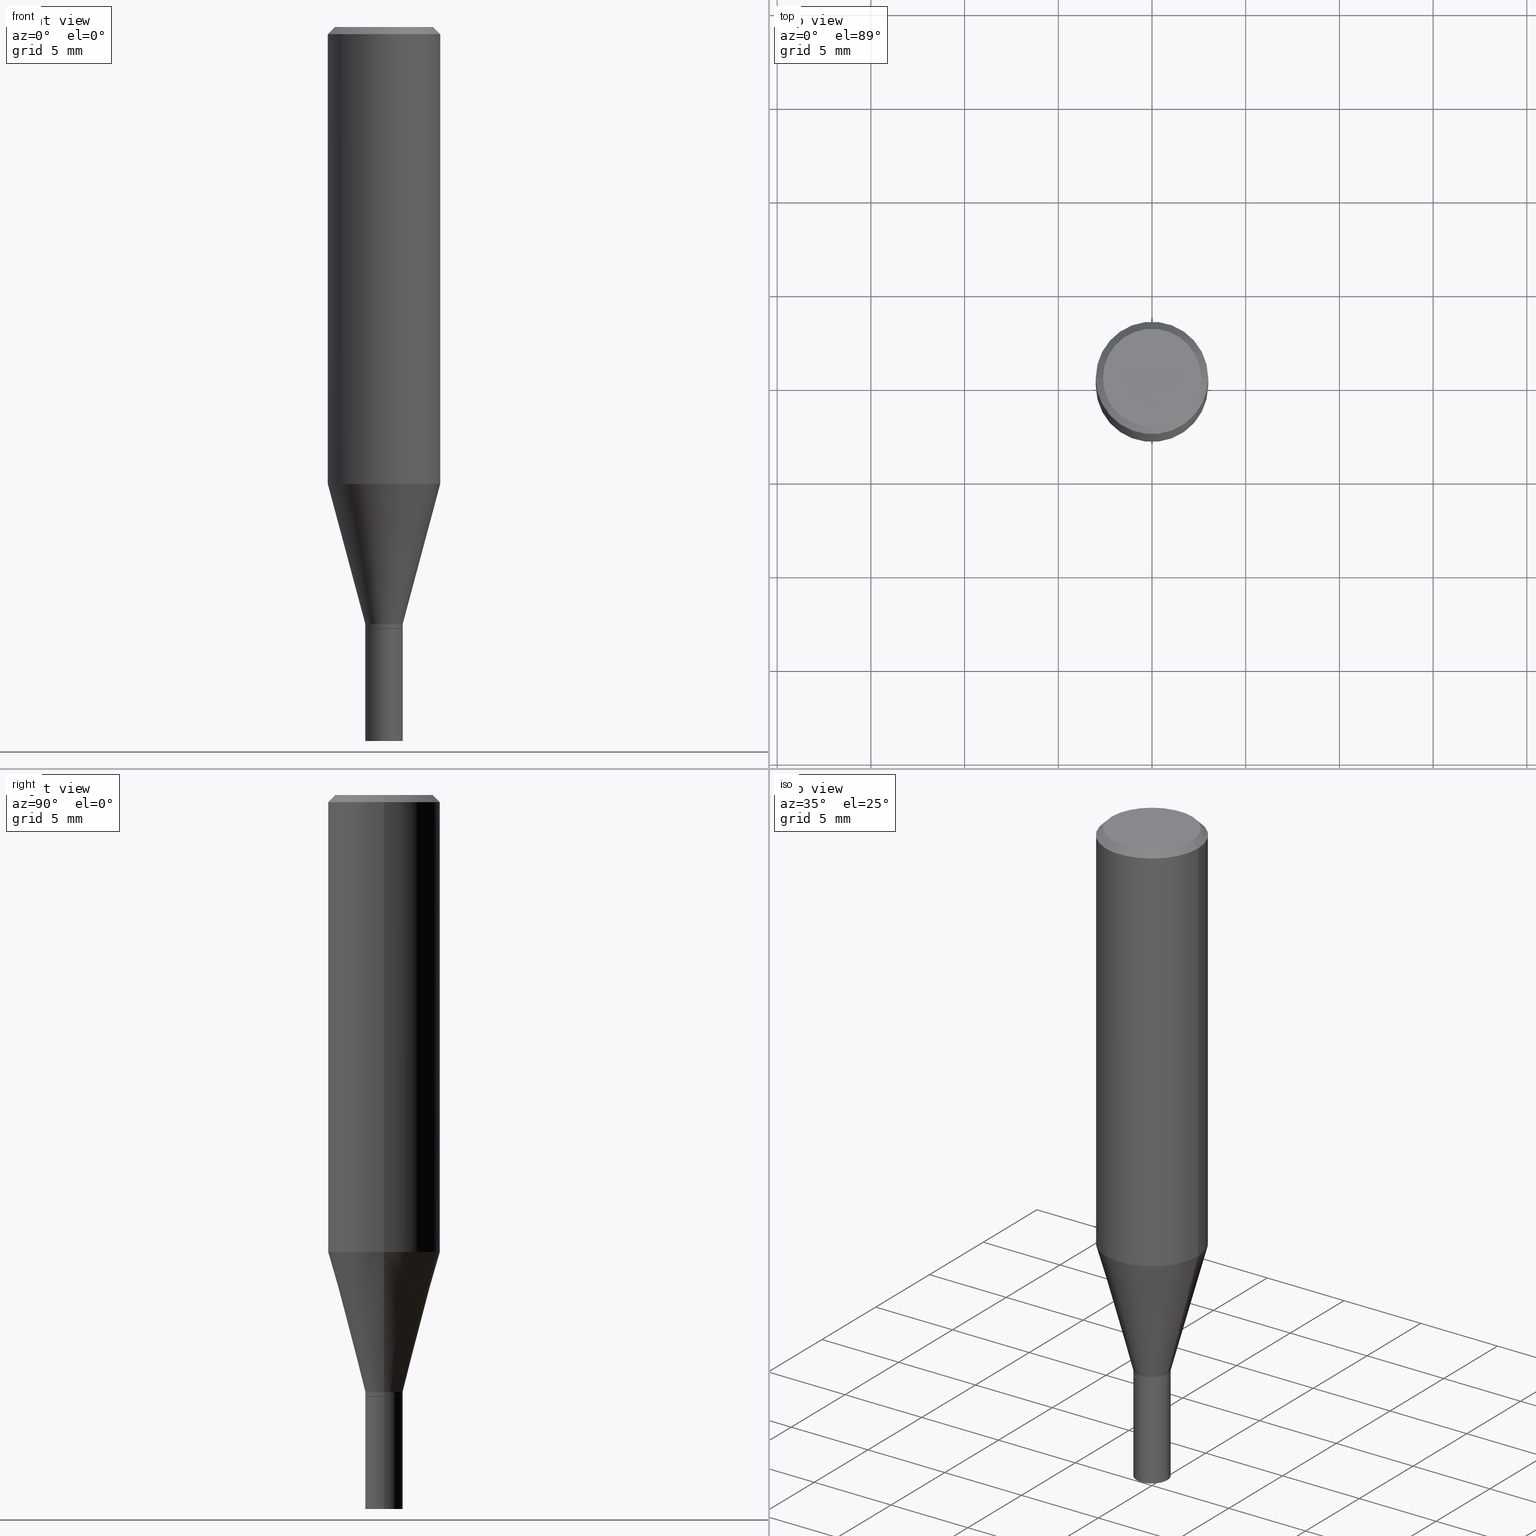
[diagram: canonical four-view strip — front | top / right | iso, engineering-drawing reading convention]
A machine part, canonical four-view strip (front | top / right | iso — engineering-drawing reading convention). The complete STEP part file that produces these views, byte-faithful:
ISO-10303-21;
HEADER;
FILE_DESCRIPTION (( 'STEP AP203' ),
    '1' );
FILE_NAME ('05352.STEP',
    '2024-03-14T18:10:22',
    ( '' ),
    ( '' ),
    'SwSTEP 2.0',
    'SolidWorks 2023',
    '' );
FILE_SCHEMA (( 'CONFIG_CONTROL_DESIGN' ));
ENDSEC;

DATA;
#1 = APPLICATION_PROTOCOL_DEFINITION ( 'international standard', 'config_control_design', 1994, #447 ) ;
#2 = ADVANCED_FACE ( 'NONE', ( #351 ), #379, .T. ) ;
#3 = CARTESIAN_POINT ( 'NONE',  ( 0.03934999999999992670, -4.685567956727500172E-15, -1.263300000000000090 ) ) ;
#4 = APPROVAL_STATUS ( 'not_yet_approved' ) ;
#5 = CARTESIAN_POINT ( 'NONE',  ( -0.1180999999999999966, 7.723156721521009862E-16, -0.01499999999999999944 ) ) ;
#6 = CIRCLE ( 'NONE', #183, 0.1180999999999999966 ) ;
#7 = CC_DESIGN_APPROVAL ( #44, ( #290 ) ) ;
#8 = PERSON_AND_ORGANIZATION_ROLE ( 'design_supplier' ) ;
#9 = DIRECTION ( 'NONE',  ( -2.445468806185136597E-29, 3.491481338843145583E-15, 1.000000000000000000 ) ) ;
#10 = EDGE_CURVE ( 'NONE', #160, #54, #426, .T. ) ;
#11 = ORIENTED_EDGE ( 'NONE', *, *, #295, .F. ) ;
#12 = PERSON_AND_ORGANIZATION ( #457, #416 ) ;
#13 = CC_DESIGN_PERSON_AND_ORGANIZATION_ASSIGNMENT ( #388, #431, ( #304 ) ) ;
#14 = DIRECTION ( 'NONE',  ( 1.000000000000000000, -6.982962677686265922E-15, 4.824495916043694704E-29 ) ) ;
#15 = CYLINDRICAL_SURFACE ( 'NONE', #76, 0.1180999999999999966 ) ;
#16 = CIRCLE ( 'NONE', #329, 0.03935000000000000303 ) ;
#17 = LINE ( 'NONE', #154, #358 ) ;
#18 = ORIENTED_EDGE ( 'NONE', *, *, #103, .F. ) ;
#19 = CARTESIAN_POINT ( 'NONE',  ( 3.668203209277705088E-31, -5.237222008264718399E-17, -0.01499999999999999944 ) ) ;
#20 = EDGE_CURVE ( 'NONE', #309, #268, #135, .T. ) ;
#21 = CARTESIAN_POINT ( 'NONE',  ( -0.03885000000000000259, -4.133839036013058638E-15, -1.263800000000000034 ) ) ;
#22 = CARTESIAN_POINT ( 'NONE',  ( 0.03934999999999991283, -2.747795813669539801E-16, 1.918775561275696519E-30 ) ) ;
#23 = DIRECTION ( 'NONE',  ( 1.000000000000000000, -6.982962677686269077E-15, 0.000000000000000000 ) ) ;
#24 = AXIS2_PLACEMENT_3D ( 'NONE', #110, #9, #101 ) ;
#25 = EDGE_CURVE ( 'NONE', #437, #236, #387, .T. ) ;
#26 = VECTOR ( 'NONE', #331, 39.37007874015748143 ) ;
#27 = DIRECTION ( 'NONE',  ( -1.000000000000000000, 6.982962677686265922E-15, -4.876176775795935793E-29 ) ) ;
#28 = EDGE_CURVE ( 'NONE', #131, #389, #71, .T. ) ;
#29 = FACE_OUTER_BOUND ( 'NONE', #185, .T. ) ;
#30 = DIRECTION ( 'NONE',  ( -2.445468806185136597E-29, 3.491481338843145583E-15, 1.000000000000000000 ) ) ;
#31 = CIRCLE ( 'NONE', #99, 0.03934999999999991283 ) ;
#32 = LINE ( 'NONE', #206, #40 ) ;
#33 = DIRECTION ( 'NONE',  ( -2.445468806185136597E-29, 3.491481338843145583E-15, 1.000000000000000000 ) ) ;
#34 = FACE_OUTER_BOUND ( 'NONE', #439, .T. ) ;
#35 = CARTESIAN_POINT ( 'NONE',  ( 3.090583477256776013E-29, -4.412534116029967548E-15, -1.263800000000000034 ) ) ;
#36 = DATE_AND_TIME ( #208, #458 ) ;
#37 = CARTESIAN_POINT ( 'NONE',  ( 3.576687321579069994E-29, -5.368277968210015545E-15, -1.500000000000000222 ) ) ;
#38 = CARTESIAN_POINT ( 'NONE',  ( 3.090583477256776013E-29, -4.412534116029967548E-15, -1.263800000000000034 ) ) ;
#39 = LINE ( 'NONE', #349, #429 ) ;
#40 = VECTOR ( 'NONE', #394, 39.37007874015748143 ) ;
#41 = CARTESIAN_POINT ( 'NONE',  ( 0.03935000000000000303, -4.687313697396922464E-15, -1.263800000000000034 ) ) ;
#42 = FACE_OUTER_BOUND ( 'NONE', #169, .T. ) ;
#43 = APPROVAL_DATE_TIME ( #219, #98 ) ;
#44 = APPROVAL ( #201, 'UNSPECIFIED' ) ;
#45 = CARTESIAN_POINT ( 'NONE',  ( -0.03935000000000000303, -4.545279495625743861E-15, -1.500000000000000222 ) ) ;
#46 = ORIENTED_EDGE ( 'NONE', *, *, #146, .T. ) ;
#47 = EDGE_CURVE ( 'NONE', #344, #59, #456, .T. ) ;
#48 = FACE_OUTER_BOUND ( 'NONE', #407, .T. ) ;
#49 = ORIENTED_EDGE ( 'NONE', *, *, #172, .F. ) ;
#50 = LINE ( 'NONE', #231, #26 ) ;
#51 = CLOSED_SHELL ( 'NONE', ( #210, #2, #327, #166, #392, #94, #91, #161, #242, #261, #245, #126 ) ) ;
#52 = CARTESIAN_POINT ( 'NONE',  ( -0.03934999999999991283, 2.795985665215988037E-16, -1.935600958015301438E-30 ) ) ;
#53 = PLANE ( 'NONE',  #413 ) ;
#54 = VERTEX_POINT ( 'NONE', #322 ) ;
#55 = FACE_OUTER_BOUND ( 'NONE', #366, .T. ) ;
#56 = EDGE_LOOP ( 'NONE', ( #151, #444, #253, #79 ) ) ;
#57 = VECTOR ( 'NONE', #398, 39.37007874015748143 ) ;
#58 = DIRECTION ( 'NONE',  ( 1.000000000000000000, -6.982962677686266711E-15, 0.000000000000000000 ) ) ;
#59 = VERTEX_POINT ( 'NONE', #21 ) ;
#60 = CARTESIAN_POINT ( 'NONE',  ( 0.000000000000000000, 0.000000000000000000, 0.000000000000000000 ) ) ;
#61 = CARTESIAN_POINT ( 'NONE',  ( 0.000000000000000000, 0.000000000000000000, 0.000000000000000000 ) ) ;
#62 = AXIS2_PLACEMENT_3D ( 'NONE', #194, #269, #302 ) ;
#63 = DIRECTION ( 'NONE',  ( -2.445468806185136597E-29, 3.491481338843145583E-15, 1.000000000000000000 ) ) ;
#64 = APPROVAL_PERSON_ORGANIZATION ( #386, #44, #390 ) ;
#65 = FACE_OUTER_BOUND ( 'NONE', #370, .T. ) ;
#66 =( NAMED_UNIT ( * ) SI_UNIT ( $, .STERADIAN. ) SOLID_ANGLE_UNIT ( ) );
#67 = DIRECTION ( 'NONE',  ( -1.000000000000000000, 6.982962677686266711E-15, 0.000000000000000000 ) ) ;
#68 = CARTESIAN_POINT ( 'NONE',  ( 3.066128789194924468E-29, -4.377619302641535898E-15, -1.253800000000000248 ) ) ;
#69 = AXIS2_PLACEMENT_3D ( 'NONE', #150, #254, #328 ) ;
#70 = DIRECTION ( 'NONE',  ( -2.445468806185136877E-29, 3.491481338843145188E-15, 1.000000000000000000 ) ) ;
#71 = LINE ( 'NONE', #441, #283 ) ;
#72 = CALENDAR_DATE ( 2024, 14, 3 ) ;
#73 = DIRECTION ( 'NONE',  ( -2.445468806185136877E-29, 3.491481338843145188E-15, 1.000000000000000000 ) ) ;
#74 = EDGE_CURVE ( 'NONE', #137, #414, #129, .T. ) ;
#75 = PERSON_AND_ORGANIZATION ( #457, #416 ) ;
#76 = AXIS2_PLACEMENT_3D ( 'NONE', #294, #446, #463 ) ;
#77 = CC_DESIGN_DATE_AND_TIME_ASSIGNMENT ( #143, #109, ( #78 ) ) ;
#78 = SECURITY_CLASSIFICATION ( '', '', #442 ) ;
#79 = ORIENTED_EDGE ( 'NONE', *, *, #396, .F. ) ;
#80 = COORDINATED_UNIVERSAL_TIME_OFFSET ( 5, 0, .BEHIND. ) ;
#81 = DIRECTION ( 'NONE',  ( 1.000000000000000000, -6.982962677686260400E-15, 0.000000000000000000 ) ) ;
#82 = DIRECTION ( 'NONE',  ( 1.000000000000000000, -6.982962677686256455E-15, 0.000000000000000000 ) ) ;
#83 = ORIENTED_EDGE ( 'NONE', *, *, #363, .F. ) ;
#84 = EDGE_CURVE ( 'NONE', #268, #309, #221, .T. ) ;
#85 = DIRECTION ( 'NONE',  ( -0.2588190451025213501, 5.211531920934551042E-15, 0.9659258262890682012 ) ) ;
#86 = LINE ( 'NONE', #52, #424 ) ;
#87 = AXIS2_PLACEMENT_3D ( 'NONE', #243, #187, #67 ) ;
#88 = LINE ( 'NONE', #198, #399 ) ;
#89 = CARTESIAN_POINT ( 'NONE',  ( 3.066128789194924468E-29, -4.377619302641535898E-15, -1.253800000000000248 ) ) ;
#90 = PLANE ( 'NONE',  #452 ) ;
#91 = ADVANCED_FACE ( 'NONE', ( #42 ), #400, .T. ) ;
#92 = DIRECTION ( 'NONE',  ( -2.445468806185136597E-29, 3.491481338843145583E-15, 1.000000000000000000 ) ) ;
#93 = AXIS2_PLACEMENT_3D ( 'NONE', #163, #191, #262 ) ;
#94 = ADVANCED_FACE ( 'NONE', ( #354 ), #371, .T. ) ;
#95 = ORIENTED_EDGE ( 'NONE', *, *, #345, .F. ) ;
#96 = CONICAL_SURFACE ( 'NONE', #153, 0.1180999999999999966, 0.7853981633974160825 ) ;
#97 = PERSON_AND_ORGANIZATION_ROLE ( 'creator' ) ;
#98 = APPROVAL ( #4, 'UNSPECIFIED' ) ;
#99 = AXIS2_PLACEMENT_3D ( 'NONE', #430, #278, #81 ) ;
#100 = DIRECTION ( 'NONE',  ( -2.445468806185136597E-29, 3.491481338843145583E-15, 1.000000000000000000 ) ) ;
#101 = DIRECTION ( 'NONE',  ( 1.000000000000000000, -6.982962677686258033E-15, 0.000000000000000000 ) ) ;
#102 = APPROVAL_ROLE ( '' ) ;
#103 = EDGE_CURVE ( 'NONE', #414, #137, #31, .T. ) ;
#104 = DIRECTION ( 'NONE',  ( 1.000000000000000000, -6.982962677686265922E-15, 4.876176775795935793E-29 ) ) ;
#105 = CARTESIAN_POINT ( 'NONE',  ( -0.1180999999999999966, 8.391509709326782957E-16, -5.809262341591043784E-30 ) ) ;
#106 = DIRECTION ( 'NONE',  ( 1.000000000000000000, -6.982962677686256455E-15, 0.000000000000000000 ) ) ;
#107 = CIRCLE ( 'NONE', #62, 0.03935000000000000303 ) ;
#108 = ORIENTED_EDGE ( 'NONE', *, *, #179, .F. ) ;
#109 = DATE_TIME_ROLE ( 'classification_date' ) ;
#110 = CARTESIAN_POINT ( 'NONE',  ( 3.089360742853683212E-29, -4.410788375360546833E-15, -1.263300000000000090 ) ) ;
#111 = COORDINATED_UNIVERSAL_TIME_OFFSET ( 5, 0, .BEHIND. ) ;
#112 = CC_DESIGN_PERSON_AND_ORGANIZATION_ASSIGNMENT ( #167, #97, ( #290 ) ) ;
#113 = AXIS2_PLACEMENT_3D ( 'NONE', #170, #314, #139 ) ;
#114 = CARTESIAN_POINT ( 'NONE',  ( 0.000000000000000000, 0.000000000000000000, 0.000000000000000000 ) ) ;
#115 = ADVANCED_FACE ( 'NONE', ( #359 ), #213, .T. ) ;
#116 = ORIENTED_EDGE ( 'NONE', *, *, #345, .T. ) ;
#117 = APPROVAL_PERSON_ORGANIZATION ( #75, #98, #226 ) ;
#118 = DIRECTION ( 'NONE',  ( 1.000000000000000000, -6.982962677686269077E-15, 0.000000000000000000 ) ) ;
#119 = VERTEX_POINT ( 'NONE', #227 ) ;
#120 = FACE_OUTER_BOUND ( 'NONE', #343, .T. ) ;
#121 = CARTESIAN_POINT ( 'NONE',  ( 3.668203209277705088E-31, -5.237222008264718399E-17, -0.01499999999999999944 ) ) ;
#122 = VECTOR ( 'NONE', #70, 39.37007874015748143 ) ;
#123 = EDGE_CURVE ( 'NONE', #59, #54, #281, .T. ) ;
#124 = DIRECTION ( 'NONE',  ( 2.438088387897960049E-29, -3.491481338843145188E-15, -1.000000000000000000 ) ) ;
#125 = DIRECTION ( 'NONE',  ( -2.445468806185136597E-29, 3.491481338843145583E-15, 1.000000000000000000 ) ) ;
#126 = ADVANCED_FACE ( 'NONE', ( #34 ), #259, .T. ) ;
#127 = ORIENTED_EDGE ( 'NONE', *, *, #123, .T. ) ;
#128 = CARTESIAN_POINT ( 'NONE',  ( 0.03885000000000000259, -4.683822216058078668E-15, -1.263800000000000034 ) ) ;
#129 = CIRCLE ( 'NONE', #158, 0.03934999999999991283 ) ;
#130 = DIRECTION ( 'NONE',  ( 0.2588190451025213501, 1.565188264969621968E-15, 0.9659258262890682012 ) ) ;
#131 = VERTEX_POINT ( 'NONE', #45 ) ;
#132 = EDGE_CURVE ( 'NONE', #309, #373, #174, .T. ) ;
#133 = COORDINATED_UNIVERSAL_TIME_OFFSET ( 5, 0, .BEHIND. ) ;
#134 = CARTESIAN_POINT ( 'NONE',  ( 0.1180999999999999966, -8.770601123173952432E-16, -0.01499999999999999944 ) ) ;
#135 = CIRCLE ( 'NONE', #316, 0.1180999999999999966 ) ;
#136 = DIRECTION ( 'NONE',  ( 1.000000000000000000, -6.982962677686266711E-15, 4.876176775795936353E-29 ) ) ;
#137 = VERTEX_POINT ( 'NONE', #393 ) ;
#138 = CARTESIAN_POINT ( 'NONE',  ( -0.03885000000000000259, -4.136488263187169051E-15, -1.263800000000000034 ) ) ;
#139 = DIRECTION ( 'NONE',  ( 1.000000000000000000, -6.982962677686269077E-15, 0.000000000000000000 ) ) ;
#140 = VERTEX_POINT ( 'NONE', #41 ) ;
#141 = CARTESIAN_POINT ( 'NONE',  ( 3.090583477256776013E-29, -4.412534116029967548E-15, -1.263800000000000034 ) ) ;
#142 = AXIS2_PLACEMENT_3D ( 'NONE', #37, #317, #104 ) ;
#143 = DATE_AND_TIME ( #72, #223 ) ;
#144 = DIRECTION ( 'NONE',  ( -2.445468806185136597E-29, 3.491481338843145583E-15, 1.000000000000000000 ) ) ;
#145 = ORIENTED_EDGE ( 'NONE', *, *, #427, .F. ) ;
#146 = EDGE_CURVE ( 'NONE', #59, #344, #165, .T. ) ;
#147 = PERSON_AND_ORGANIZATION_ROLE ( 'classification_officer' ) ;
#148 = ORIENTED_EDGE ( 'NONE', *, *, #295, .T. ) ;
#149 = CONICAL_SURFACE ( 'NONE', #214, 0.03885000000000000259, 0.7853981633974739252 ) ;
#150 = CARTESIAN_POINT ( 'NONE',  ( 3.090583477256776013E-29, -4.412534116029967548E-15, -1.263800000000000034 ) ) ;
#151 = ORIENTED_EDGE ( 'NONE', *, *, #103, .T. ) ;
#152 = ORIENTED_EDGE ( 'NONE', *, *, #171, .F. ) ;
#153 = AXIS2_PLACEMENT_3D ( 'NONE', #380, #409, #192 ) ;
#154 = CARTESIAN_POINT ( 'NONE',  ( 0.1180999999999999966, -8.625970336194650129E-16, -0.01499999999999999944 ) ) ;
#155 = ORIENTED_EDGE ( 'NONE', *, *, #84, .T. ) ;
#156 = DIRECTION ( 'NONE',  ( -2.445468806185136877E-29, 3.491481338843145188E-15, 1.000000000000000000 ) ) ;
#157 = DIRECTION ( 'NONE',  ( -1.000000000000000000, 6.982962677686265922E-15, -4.876176775795935793E-29 ) ) ;
#158 = AXIS2_PLACEMENT_3D ( 'NONE', #89, #372, #225 ) ;
#159 = LOCAL_TIME ( 14, 10, 22.00000000000000000, #80 ) ;
#160 = VERTEX_POINT ( 'NONE', #3 ) ;
#161 = ADVANCED_FACE ( 'NONE', ( #48 ), #435, .T. ) ;
#162 = LINE ( 'NONE', #22, #397 ) ;
#163 = CARTESIAN_POINT ( 'NONE',  ( -2.356111900284270779E-44, 3.363903359250623461E-30, 9.634602143871708828E-16 ) ) ;
#164 = DIMENSIONAL_EXPONENTS ( 1.000000000000000000, 0.000000000000000000, 0.000000000000000000, 0.000000000000000000, 0.000000000000000000, 0.000000000000000000, 0.000000000000000000 ) ;
#165 = CIRCLE ( 'NONE', #69, 0.03885000000000000259 ) ;
#166 = ADVANCED_FACE ( 'NONE', ( #436 ), #15, .T. ) ;
#167 = PERSON_AND_ORGANIZATION ( #457, #416 ) ;
#168 = CARTESIAN_POINT ( 'NONE',  ( 0.03934999999999991283, -4.652398884008490026E-15, -1.253800000000000248 ) ) ;
#169 = EDGE_LOOP ( 'NONE', ( #224, #285, #326, #95 ) ) ;
#170 = CARTESIAN_POINT ( 'NONE',  ( 3.090583477256776013E-29, -4.412534116029967548E-15, -1.263800000000000034 ) ) ;
#171 = EDGE_CURVE ( 'NONE', #236, #373, #209, .T. ) ;
#172 = EDGE_CURVE ( 'NONE', #389, #140, #339, .T. ) ;
#173 = CALENDAR_DATE ( 2024, 14, 3 ) ;
#174 = LINE ( 'NONE', #105, #252 ) ;
#175 = ADVANCED_FACE ( 'NONE', ( #65 ), #207, .F. ) ;
#176 = LENGTH_MEASURE_WITH_UNIT ( LENGTH_MEASURE( 0.02539999999999999897 ), #239 );
#177 = PRODUCT_DEFINITION_FORMATION_WITH_SPECIFIED_SOURCE ( 'ANY', '', #304, .NOT_KNOWN. ) ;
#178 = DIRECTION ( 'NONE',  ( -2.445468806185136597E-29, 3.491481338843145583E-15, 1.000000000000000000 ) ) ;
#179 = EDGE_CURVE ( 'NONE', #268, #204, #353, .T. ) ;
#180 = ORIENTED_EDGE ( 'NONE', *, *, #376, .T. ) ;
#181 = DIRECTION ( 'NONE',  ( -2.445468806185136597E-29, 3.491481338843145583E-15, 1.000000000000000000 ) ) ;
#182 = CC_DESIGN_PERSON_AND_ORGANIZATION_ASSIGNMENT ( #403, #286, ( #177 ) ) ;
#183 = AXIS2_PLACEMENT_3D ( 'NONE', #19, #92, #374 ) ;
#184 = APPLICATION_CONTEXT ( 'configuration controlled 3d designs of mechanical parts and assemblies' ) ;
#185 = EDGE_LOOP ( 'NONE', ( #448, #408 ) ) ;
#186 = MANIFOLD_SOLID_BREP ( 'Body-Move/Copy2[1]', #434 ) ;
#187 = DIRECTION ( 'NONE',  ( 2.445468806185136597E-29, -3.491481338843145583E-15, -1.000000000000000000 ) ) ;
#188 = ORIENTED_EDGE ( 'NONE', *, *, #256, .T. ) ;
#189 = AXIS2_PLACEMENT_3D ( 'NONE', #340, #411, #232 ) ;
#190 = DIRECTION ( 'NONE',  ( -2.445468806185136877E-29, 3.491481338843145188E-15, 1.000000000000000000 ) ) ;
#191 = DIRECTION ( 'NONE',  ( -2.445468806185136597E-29, 3.491481338843145583E-15, 1.000000000000000000 ) ) ;
#192 = DIRECTION ( 'NONE',  ( -1.000000000000000000, 6.982962677686266711E-15, 0.000000000000000000 ) ) ;
#193 = EDGE_CURVE ( 'NONE', #140, #389, #323, .T. ) ;
#194 = CARTESIAN_POINT ( 'NONE',  ( 3.668203209277704895E-29, -5.237222008264718177E-15, -1.500000000000000222 ) ) ;
#195 = AXIS2_PLACEMENT_3D ( 'NONE', #114, #100, #433 ) ;
#196 = LOCAL_TIME ( 14, 10, 22.00000000000000000, #212 ) ;
#197 = ORIENTED_EDGE ( 'NONE', *, *, #171, .T. ) ;
#198 = CARTESIAN_POINT ( 'NONE',  ( -0.03934999999999991283, -4.098020736119937292E-15, -1.253800000000000248 ) ) ;
#199 = EDGE_LOOP ( 'NONE', ( #341, #272, #18, #215 ) ) ;
#200 = ORIENTED_EDGE ( 'NONE', *, *, #74, .T. ) ;
#201 = APPROVAL_STATUS ( 'not_yet_approved' ) ;
#202 = CARTESIAN_POINT ( 'NONE',  ( -2.356111900284270779E-44, 3.363903359250623461E-30, 9.634602143871708828E-16 ) ) ;
#203 = CIRCLE ( 'NONE', #189, 0.03934999999999992670 ) ;
#204 = VERTEX_POINT ( 'NONE', #134 ) ;
#205 = CC_DESIGN_SECURITY_CLASSIFICATION ( #78, ( #177 ) ) ;
#206 = CARTESIAN_POINT ( 'NONE',  ( 0.03885000000000000259, -4.683822216058078668E-15, -1.263800000000000034 ) ) ;
#207 = PLANE ( 'NONE',  #142 ) ;
#208 = CALENDAR_DATE ( 2024, 14, 3 ) ;
#209 = LINE ( 'NONE', #5, #57 ) ;
#210 = ADVANCED_FACE ( 'NONE', ( #466 ), #280, .T. ) ;
#211 = CARTESIAN_POINT ( 'NONE',  ( 2.347407949845566514E-29, -3.351476424810041143E-15, -0.9599009989039514190 ) ) ;
#212 = COORDINATED_UNIVERSAL_TIME_OFFSET ( 5, 0, .BEHIND. ) ;
#213 = CYLINDRICAL_SURFACE ( 'NONE', #195, 0.03935000000000000303 ) ;
#214 = AXIS2_PLACEMENT_3D ( 'NONE', #454, #419, #233 ) ;
#215 = ORIENTED_EDGE ( 'NONE', *, *, #256, .F. ) ;
#216 = EDGE_CURVE ( 'NONE', #236, #437, #293, .T. ) ;
#217 = CONICAL_SURFACE ( 'NONE', #266, 0.03934999999999991283, 0.2617993877991500740 ) ;
#218 = DIRECTION ( 'NONE',  ( 1.000000000000000000, -6.982962677686266711E-15, 4.876176775795936353E-29 ) ) ;
#219 = DATE_AND_TIME ( #247, #159 ) ;
#220 = APPROVAL_DATE_TIME ( #273, #299 ) ;
#221 = CIRCLE ( 'NONE', #422, 0.1180999999999999966 ) ;
#222 = ORIENTED_EDGE ( 'NONE', *, *, #251, .F. ) ;
#223 = LOCAL_TIME ( 14, 10, 22.00000000000000000, #111 ) ;
#224 = ORIENTED_EDGE ( 'NONE', *, *, #132, .F. ) ;
#225 = DIRECTION ( 'NONE',  ( 1.000000000000000000, -6.982962677686260400E-15, 0.000000000000000000 ) ) ;
#226 = APPROVAL_ROLE ( '' ) ;
#227 = CARTESIAN_POINT ( 'NONE',  ( 0.03935000000000000303, -5.512001589631673094E-15, -1.500000000000000222 ) ) ;
#228 = ORIENTED_EDGE ( 'NONE', *, *, #123, .F. ) ;
#229 = DIRECTION ( 'NONE',  ( -2.438088387897960049E-29, 3.491481338843145188E-15, 1.000000000000000000 ) ) ;
#230 = CARTESIAN_POINT ( 'NONE',  ( 7.199434520694541042E-16, 0.1031000000000000111, 1.217583811588571567E-16 ) ) ;
#231 = CARTESIAN_POINT ( 'NONE',  ( 0.03935000000000000303, -2.747795813669546211E-16, 1.918775561275701074E-30 ) ) ;
#232 = DIRECTION ( 'NONE',  ( 1.000000000000000000, -6.982962677686258033E-15, 0.000000000000000000 ) ) ;
#233 = DIRECTION ( 'NONE',  ( 1.000000000000000000, -6.982962677686256455E-15, 0.000000000000000000 ) ) ;
#234 = AXIS2_PLACEMENT_3D ( 'NONE', #432, #246, #395 ) ;
#235 = CARTESIAN_POINT ( 'NONE',  ( 2.347407949845566514E-29, -3.351476424810041143E-15, -0.9599009989039514190 ) ) ;
#236 = VERTEX_POINT ( 'NONE', #421 ) ;
#237 = CARTESIAN_POINT ( 'NONE',  ( 0.1031000000000000111, -7.849571885948532984E-16, 9.634602143871762076E-16 ) ) ;
#238 = DIRECTION ( 'NONE',  ( -2.445468806185136597E-29, 3.491481338843145583E-15, 1.000000000000000000 ) ) ;
#239 =( LENGTH_UNIT ( ) NAMED_UNIT ( * ) SI_UNIT ( $, .METRE. ) );
#240 = PERSON_AND_ORGANIZATION ( #457, #416 ) ;
#241 = MECHANICAL_CONTEXT ( 'NONE', #184, 'mechanical' ) ;
#242 = ADVANCED_FACE ( 'NONE', ( #120 ), #90, .F. ) ;
#243 = CARTESIAN_POINT ( 'NONE',  ( 3.668203209277705088E-31, -5.237222008264718399E-17, -0.01499999999999999944 ) ) ;
#244 = DATE_AND_TIME ( #173, #255 ) ;
#245 = ADVANCED_FACE ( 'NONE', ( #342 ), #149, .T. ) ;
#246 = DIRECTION ( 'NONE',  ( -2.445468806185136597E-29, 3.491481338843145583E-15, 1.000000000000000000 ) ) ;
#247 = CALENDAR_DATE ( 2024, 14, 3 ) ;
#248 = CARTESIAN_POINT ( 'NONE',  ( 0.1180999999999999966, -8.246878922347480654E-16, 5.758764772215000440E-30 ) ) ;
#249 = AXIS2_PLACEMENT_3D ( 'NONE', #68, #181, #356 ) ;
#250 = CC_DESIGN_APPROVAL ( #98, ( #78 ) ) ;
#251 = EDGE_CURVE ( 'NONE', #131, #119, #16, .T. ) ;
#252 = VECTOR ( 'NONE', #321, 39.37007874015748143 ) ;
#253 = ORIENTED_EDGE ( 'NONE', *, *, #84, .F. ) ;
#254 = DIRECTION ( 'NONE',  ( -2.445468806185136597E-29, 3.491481338843145583E-15, 1.000000000000000000 ) ) ;
#255 = LOCAL_TIME ( 14, 10, 22.00000000000000000, #313 ) ;
#256 = EDGE_CURVE ( 'NONE', #160, #414, #162, .T. ) ;
#257 = ORIENTED_EDGE ( 'NONE', *, *, #25, .T. ) ;
#258 = ORIENTED_EDGE ( 'NONE', *, *, #28, .F. ) ;
#259 = CYLINDRICAL_SURFACE ( 'NONE', #274, 0.03934999999999991283 ) ;
#260 = ORIENTED_EDGE ( 'NONE', *, *, #325, .F. ) ;
#261 = ADVANCED_FACE ( 'NONE', ( #29 ), #53, .F. ) ;
#262 = DIRECTION ( 'NONE',  ( 1.000000000000000000, -6.982962677686265922E-15, 4.824495916043694704E-29 ) ) ;
#263 = AXIS2_PLACEMENT_3D ( 'NONE', #38, #357, #106 ) ;
#264 = CC_DESIGN_PERSON_AND_ORGANIZATION_ASSIGNMENT ( #12, #147, ( #78 ) ) ;
#265 = CARTESIAN_POINT ( 'NONE',  ( 3.066128789194924468E-29, -4.377619302641535898E-15, -1.253800000000000248 ) ) ;
#266 = AXIS2_PLACEMENT_3D ( 'NONE', #265, #33, #423 ) ;
#267 = CARTESIAN_POINT ( 'NONE',  ( 3.668203209277704895E-29, -5.237222008264718177E-15, -1.500000000000000222 ) ) ;
#268 = VERTEX_POINT ( 'NONE', #378 ) ;
#269 = DIRECTION ( 'NONE',  ( -2.445468806185136597E-29, 3.491481338843145583E-15, 1.000000000000000000 ) ) ;
#270 = ORIENTED_EDGE ( 'NONE', *, *, #132, .T. ) ;
#271 = ORIENTED_EDGE ( 'NONE', *, *, #47, .T. ) ;
#272 = ORIENTED_EDGE ( 'NONE', *, *, #391, .T. ) ;
#273 = DATE_AND_TIME ( #355, #196 ) ;
#274 = AXIS2_PLACEMENT_3D ( 'NONE', #365, #178, #406 ) ;
#275 = CIRCLE ( 'NONE', #381, 0.1180999999999999966 ) ;
#276 = FACE_OUTER_BOUND ( 'NONE', #308, .T. ) ;
#277 = AXIS2_PLACEMENT_3D ( 'NONE', #360, #385, #218 ) ;
#278 = DIRECTION ( 'NONE',  ( -2.445468806185136597E-29, 3.491481338843145583E-15, 1.000000000000000000 ) ) ;
#279 = AXIS2_PLACEMENT_3D ( 'NONE', #60, #384, #428 ) ;
#280 = CYLINDRICAL_SURFACE ( 'NONE', #234, 0.03934999999999991283 ) ;
#281 = LINE ( 'NONE', #138, #362 ) ;
#282 = SHAPE_DEFINITION_REPRESENTATION ( #347, #335 ) ;
#283 = VECTOR ( 'NONE', #73, 39.37007874015748143 ) ;
#284 = DIRECTION ( 'NONE',  ( -2.445468806185136597E-29, 3.491481338843145583E-15, 1.000000000000000000 ) ) ;
#285 = ORIENTED_EDGE ( 'NONE', *, *, #20, .T. ) ;
#286 = PERSON_AND_ORGANIZATION_ROLE ( 'creator' ) ;
#287 = ORIENTED_EDGE ( 'NONE', *, *, #172, .T. ) ;
#288 = EDGE_CURVE ( 'NONE', #54, #160, #203, .T. ) ;
#289 = ADVANCED_FACE ( 'NONE', ( #55 ), #306, .F. ) ;
#290 = PRODUCT_DEFINITION ( 'UNKNOWN', '', #177, #460 ) ;
#291 = ORIENTED_EDGE ( 'NONE', *, *, #383, .F. ) ;
#292 = EDGE_LOOP ( 'NONE', ( #155, #270, #260, #108 ) ) ;
#293 = CIRCLE ( 'NONE', #93, 0.1031000000000000111 ) ;
#294 = CARTESIAN_POINT ( 'NONE',  ( 0.000000000000000000, 0.000000000000000000, 0.000000000000000000 ) ) ;
#295 = EDGE_CURVE ( 'NONE', #119, #131, #107, .T. ) ;
#296 = ORIENTED_EDGE ( 'NONE', *, *, #376, .F. ) ;
#297 = ORIENTED_EDGE ( 'NONE', *, *, #383, .T. ) ;
#298 = DIRECTION ( 'NONE',  ( 0.7071067811865247021, -7.319954787623178737E-15, -0.7071067811865703323 ) ) ;
#299 = APPROVAL ( #315, 'UNSPECIFIED' ) ;
#300 = CARTESIAN_POINT ( 'NONE',  ( 3.090583477256776013E-29, -4.412534116029967548E-15, -1.263800000000000034 ) ) ;
#301 = AXIS2_PLACEMENT_3D ( 'NONE', #35, #144, #82 ) ;
#302 = DIRECTION ( 'NONE',  ( 1.000000000000000000, -6.982962677686269077E-15, 0.000000000000000000 ) ) ;
#303 = APPROVAL_PERSON_ORGANIZATION ( #240, #299, #102 ) ;
#304 = PRODUCT ( '05352', '05352', '', ( #241 ) ) ;
#305 = ORIENTED_EDGE ( 'NONE', *, *, #216, .F. ) ;
#306 = PLANE ( 'NONE',  #311 ) ;
#307 = FACE_OUTER_BOUND ( 'NONE', #417, .T. ) ;
#308 = EDGE_LOOP ( 'NONE', ( #148, #461, #410, #296 ) ) ;
#309 = VERTEX_POINT ( 'NONE', #415 ) ;
#310 = APPROVAL_DATE_TIME ( #36, #44 ) ;
#311 = AXIS2_PLACEMENT_3D ( 'NONE', #375, #124, #157 ) ;
#312 = DIRECTION ( 'NONE',  ( 1.000000000000000000, -6.982962677686269077E-15, 0.000000000000000000 ) ) ;
#313 = COORDINATED_UNIVERSAL_TIME_OFFSET ( 5, 0, .BEHIND. ) ;
#314 = DIRECTION ( 'NONE',  ( -2.445468806185136597E-29, 3.491481338843145583E-15, 1.000000000000000000 ) ) ;
#315 = APPROVAL_STATUS ( 'not_yet_approved' ) ;
#316 = AXIS2_PLACEMENT_3D ( 'NONE', #211, #238, #312 ) ;
#317 = DIRECTION ( 'NONE',  ( -2.438088387897960049E-29, 3.491481338843145188E-15, 1.000000000000000000 ) ) ;
#318 = CC_DESIGN_APPROVAL ( #299, ( #177 ) ) ;
#319 =( NAMED_UNIT ( * ) PLANE_ANGLE_UNIT ( ) SI_UNIT ( $, .RADIAN. ) );
#320 = DIRECTION ( 'NONE',  ( -0.7071067811865656694, 7.493145998870420424E-15, 0.7071067811865294761 ) ) ;
#321 = DIRECTION ( 'NONE',  ( -2.445468806185136877E-29, 3.491481338843145188E-15, 1.000000000000000000 ) ) ;
#322 = CARTESIAN_POINT ( 'NONE',  ( -0.03934999999999992670, -4.131189808838948226E-15, -1.263300000000000090 ) ) ;
#323 = CIRCLE ( 'NONE', #113, 0.03935000000000000303 ) ;
#324 = EDGE_LOOP ( 'NONE', ( #258, #330, #180, #49 ) ) ;
#325 = EDGE_CURVE ( 'NONE', #204, #373, #6, .T. ) ;
#326 = ORIENTED_EDGE ( 'NONE', *, *, #179, .T. ) ;
#327 = ADVANCED_FACE ( 'NONE', ( #307 ), #96, .T. ) ;
#328 = DIRECTION ( 'NONE',  ( 1.000000000000000000, -6.982962677686256455E-15, 0.000000000000000000 ) ) ;
#329 = AXIS2_PLACEMENT_3D ( 'NONE', #267, #125, #336 ) ;
#330 = ORIENTED_EDGE ( 'NONE', *, *, #251, .T. ) ;
#331 = DIRECTION ( 'NONE',  ( -2.445468806185136877E-29, 3.491481338843145188E-15, 1.000000000000000000 ) ) ;
#332 = AXIS2_PLACEMENT_3D ( 'NONE', #61, #30, #136 ) ;
#333 = ORIENTED_EDGE ( 'NONE', *, *, #216, .T. ) ;
#334 = MANIFOLD_SOLID_BREP ( 'Body-Move/Copy2[2]', #51 ) ;
#335 = ADVANCED_BREP_SHAPE_REPRESENTATION ( '05352', ( #186, #334, #279 ), #405 ) ;
#336 = DIRECTION ( 'NONE',  ( 1.000000000000000000, -6.982962677686269077E-15, 0.000000000000000000 ) ) ;
#337 = DIRECTION ( 'NONE',  ( 1.000000000000000000, -6.982962677686265922E-15, 4.876176775795935793E-29 ) ) ;
#338 = ORIENTED_EDGE ( 'NONE', *, *, #325, .T. ) ;
#339 = CIRCLE ( 'NONE', #348, 0.03935000000000000303 ) ;
#340 = CARTESIAN_POINT ( 'NONE',  ( 3.089360742853683212E-29, -4.410788375360546833E-15, -1.263300000000000090 ) ) ;
#341 = ORIENTED_EDGE ( 'NONE', *, *, #10, .T. ) ;
#342 = FACE_OUTER_BOUND ( 'NONE', #401, .T. ) ;
#343 = EDGE_LOOP ( 'NONE', ( #333, #257 ) ) ;
#344 = VERTEX_POINT ( 'NONE', #128 ) ;
#345 = EDGE_CURVE ( 'NONE', #373, #204, #275, .T. ) ;
#346 = APPLICATION_PROTOCOL_DEFINITION ( 'international standard', 'config_control_design', 1994, #184 ) ;
#347 = PRODUCT_DEFINITION_SHAPE ( 'NONE', 'NONE',  #290 ) ;
#348 = AXIS2_PLACEMENT_3D ( 'NONE', #141, #284, #118 ) ;
#349 = CARTESIAN_POINT ( 'NONE',  ( 0.03934999999999991283, -4.652398884008490026E-15, -1.253800000000000248 ) ) ;
#350 = CC_DESIGN_DATE_AND_TIME_ASSIGNMENT ( #244, #459, ( #290 ) ) ;
#351 = FACE_OUTER_BOUND ( 'NONE', #445, .T. ) ;
#352 =( CONVERSION_BASED_UNIT ( 'INCH', #176 ) LENGTH_UNIT ( ) NAMED_UNIT ( #164 ) );
#353 = LINE ( 'NONE', #248, #122 ) ;
#354 = FACE_OUTER_BOUND ( 'NONE', #367, .T. ) ;
#355 = CALENDAR_DATE ( 2024, 14, 3 ) ;
#356 = DIRECTION ( 'NONE',  ( 1.000000000000000000, -6.982962677686260400E-15, 0.000000000000000000 ) ) ;
#357 = DIRECTION ( 'NONE',  ( -2.445468806185136597E-29, 3.491481338843145583E-15, 1.000000000000000000 ) ) ;
#358 = VECTOR ( 'NONE', #298, 39.37007874015748143 ) ;
#359 = FACE_OUTER_BOUND ( 'NONE', #324, .T. ) ;
#360 = CARTESIAN_POINT ( 'NONE',  ( 0.000000000000000000, 0.000000000000000000, 0.000000000000000000 ) ) ;
#361 = ORIENTED_EDGE ( 'NONE', *, *, #10, .F. ) ;
#362 = VECTOR ( 'NONE', #320, 39.37007874015748143 ) ;
#363 = EDGE_CURVE ( 'NONE', #137, #309, #88, .T. ) ;
#364 = ORIENTED_EDGE ( 'NONE', *, *, #391, .F. ) ;
#365 = CARTESIAN_POINT ( 'NONE',  ( 0.000000000000000000, 0.000000000000000000, 0.000000000000000000 ) ) ;
#366 = EDGE_LOOP ( 'NONE', ( #404, #287 ) ) ;
#367 = EDGE_LOOP ( 'NONE', ( #83, #200, #418, #450 ) ) ;
#368 = CC_DESIGN_PERSON_AND_ORGANIZATION_ASSIGNMENT ( #440, #8, ( #177 ) ) ;
#369 = CARTESIAN_POINT ( 'NONE',  ( -0.1180999999999999966, -8.627733515136660128E-16, -0.01499999999999999944 ) ) ;
#370 = EDGE_LOOP ( 'NONE', ( #11, #222 ) ) ;
#371 = CONICAL_SURFACE ( 'NONE', #249, 0.03934999999999991283, 0.2617993877991500740 ) ;
#372 = DIRECTION ( 'NONE',  ( -2.445468806185136597E-29, 3.491481338843145583E-15, 1.000000000000000000 ) ) ;
#373 = VERTEX_POINT ( 'NONE', #369 ) ;
#374 = DIRECTION ( 'NONE',  ( 1.000000000000000000, -6.982962677686266711E-15, 0.000000000000000000 ) ) ;
#375 = CARTESIAN_POINT ( 'NONE',  ( 2.747795813669854853E-16, 0.03934999999999558989, -1.263800000000000257 ) ) ;
#376 = EDGE_CURVE ( 'NONE', #119, #140, #50, .T. ) ;
#377 = ORIENTED_EDGE ( 'NONE', *, *, #288, .T. ) ;
#378 = CARTESIAN_POINT ( 'NONE',  ( 0.1181000000000000105, -4.176164317044788617E-15, -0.9599009989039514190 ) ) ;
#379 = CONICAL_SURFACE ( 'NONE', #263, 0.03885000000000000259, 0.7853981633974739252 ) ;
#380 = CARTESIAN_POINT ( 'NONE',  ( 3.668203209277705088E-31, -5.237222008264718399E-17, -0.01499999999999999944 ) ) ;
#381 = AXIS2_PLACEMENT_3D ( 'NONE', #121, #453, #58 ) ;
#382 = ORIENTED_EDGE ( 'NONE', *, *, #74, .F. ) ;
#383 = EDGE_CURVE ( 'NONE', #437, #204, #17, .T. ) ;
#384 = DIRECTION ( 'NONE',  ( 0.000000000000000000, 0.000000000000000000, 1.000000000000000000 ) ) ;
#385 = DIRECTION ( 'NONE',  ( -2.445468806185136597E-29, 3.491481338843145583E-15, 1.000000000000000000 ) ) ;
#386 = PERSON_AND_ORGANIZATION ( #457, #416 ) ;
#387 = CIRCLE ( 'NONE', #464, 0.1031000000000000111 ) ;
#388 = PERSON_AND_ORGANIZATION ( #457, #416 ) ;
#389 = VERTEX_POINT ( 'NONE', #449 ) ;
#390 = APPROVAL_ROLE ( '' ) ;
#391 = EDGE_CURVE ( 'NONE', #54, #137, #86, .T. ) ;
#392 = ADVANCED_FACE ( 'NONE', ( #451 ), #217, .T. ) ;
#393 = CARTESIAN_POINT ( 'NONE',  ( -0.03934999999999991283, -3.305173094998650119E-15, -1.253800000000000248 ) ) ;
#394 = DIRECTION ( 'NONE',  ( 0.7071067811865656694, -2.468850131082446387E-15, 0.7071067811865294761 ) ) ;
#395 = DIRECTION ( 'NONE',  ( 1.000000000000000000, -6.982962677686266711E-15, 4.876176775795935793E-29 ) ) ;
#396 = EDGE_CURVE ( 'NONE', #414, #268, #39, .T. ) ;
#397 = VECTOR ( 'NONE', #190, 39.37007874015748143 ) ;
#398 = DIRECTION ( 'NONE',  ( -0.7071067811865247021, 2.468850131082017641E-15, -0.7071067811865703323 ) ) ;
#399 = VECTOR ( 'NONE', #85, 39.37007874015747433 ) ;
#400 = CYLINDRICAL_SURFACE ( 'NONE', #277, 0.1180999999999999966 ) ;
#401 = EDGE_LOOP ( 'NONE', ( #228, #46, #420, #462 ) ) ;
#402 = PRODUCT_RELATED_PRODUCT_CATEGORY ( 'detail', '', ( #304 ) ) ;
#403 = PERSON_AND_ORGANIZATION ( #457, #416 ) ;
#404 = ORIENTED_EDGE ( 'NONE', *, *, #193, .T. ) ;
#405 =( GEOMETRIC_REPRESENTATION_CONTEXT ( 3 ) GLOBAL_UNCERTAINTY_ASSIGNED_CONTEXT ( ( #443 ) ) GLOBAL_UNIT_ASSIGNED_CONTEXT ( ( #352, #319, #66 ) ) REPRESENTATION_CONTEXT ( 'NONE', 'WORKASPACE' ) );
#406 = DIRECTION ( 'NONE',  ( 1.000000000000000000, -6.982962677686266711E-15, 4.876176775795935793E-29 ) ) ;
#407 = EDGE_LOOP ( 'NONE', ( #291, #305, #197, #116 ) ) ;
#408 = ORIENTED_EDGE ( 'NONE', *, *, #146, .F. ) ;
#409 = DIRECTION ( 'NONE',  ( 2.445468806185136597E-29, -3.491481338843145583E-15, -1.000000000000000000 ) ) ;
#410 = ORIENTED_EDGE ( 'NONE', *, *, #193, .F. ) ;
#411 = DIRECTION ( 'NONE',  ( -2.445468806185136597E-29, 3.491481338843145583E-15, 1.000000000000000000 ) ) ;
#412 = DIRECTION ( 'NONE',  ( -2.445468806185136597E-29, 3.491481338843145583E-15, 1.000000000000000000 ) ) ;
#413 = AXIS2_PLACEMENT_3D ( 'NONE', #300, #229, #337 ) ;
#414 = VERTEX_POINT ( 'NONE', #168 ) ;
#415 = CARTESIAN_POINT ( 'NONE',  ( -0.1181000000000000105, -2.512325453877362157E-15, -0.9599009989039514190 ) ) ;
#416 = ORGANIZATION ( 'UNSPECIFIED', 'UNSPECIFIED', '' ) ;
#417 = EDGE_LOOP ( 'NONE', ( #425, #297, #338, #152 ) ) ;
#418 = ORIENTED_EDGE ( 'NONE', *, *, #396, .T. ) ;
#419 = DIRECTION ( 'NONE',  ( -2.445468806185136597E-29, 3.491481338843145583E-15, 1.000000000000000000 ) ) ;
#420 = ORIENTED_EDGE ( 'NONE', *, *, #427, .T. ) ;
#421 = CARTESIAN_POINT ( 'NONE',  ( -0.1031000000000000111, 7.461295621107793201E-16, 9.634602143871657552E-16 ) ) ;
#422 = AXIS2_PLACEMENT_3D ( 'NONE', #235, #412, #23 ) ;
#423 = DIRECTION ( 'NONE',  ( 1.000000000000000000, -6.982962677686260400E-15, 0.000000000000000000 ) ) ;
#424 = VECTOR ( 'NONE', #156, 39.37007874015748143 ) ;
#425 = ORIENTED_EDGE ( 'NONE', *, *, #25, .F. ) ;
#426 = CIRCLE ( 'NONE', #24, 0.03934999999999992670 ) ;
#427 = EDGE_CURVE ( 'NONE', #344, #160, #32, .T. ) ;
#428 = DIRECTION ( 'NONE',  ( 1.000000000000000000, 0.000000000000000000, 0.000000000000000000 ) ) ;
#429 = VECTOR ( 'NONE', #130, 39.37007874015747433 ) ;
#430 = CARTESIAN_POINT ( 'NONE',  ( 3.066128789194924468E-29, -4.377619302641535898E-15, -1.253800000000000248 ) ) ;
#431 = PERSON_AND_ORGANIZATION_ROLE ( 'design_owner' ) ;
#432 = CARTESIAN_POINT ( 'NONE',  ( 0.000000000000000000, 0.000000000000000000, 0.000000000000000000 ) ) ;
#433 = DIRECTION ( 'NONE',  ( 1.000000000000000000, -6.982962677686266711E-15, 4.876176775795936353E-29 ) ) ;
#434 = CLOSED_SHELL ( 'NONE', ( #438, #175, #115, #289 ) ) ;
#435 = CONICAL_SURFACE ( 'NONE', #87, 0.1180999999999999966, 0.7853981633974160825 ) ;
#436 = FACE_OUTER_BOUND ( 'NONE', #292, .T. ) ;
#437 = VERTEX_POINT ( 'NONE', #237 ) ;
#438 = ADVANCED_FACE ( 'NONE', ( #276 ), #465, .T. ) ;
#439 = EDGE_LOOP ( 'NONE', ( #364, #377, #188, #382 ) ) ;
#440 = PERSON_AND_ORGANIZATION ( #457, #416 ) ;
#441 = CARTESIAN_POINT ( 'NONE',  ( -0.03935000000000000303, 2.795985665215994447E-16, -1.935600958015305291E-30 ) ) ;
#442 = SECURITY_CLASSIFICATION_LEVEL ( 'unclassified' ) ;
#443 = UNCERTAINTY_MEASURE_WITH_UNIT (LENGTH_MEASURE( 1.000000000000000082E-05 ), #352, 'distance_accuracy_value', 'NONE');
#444 = ORIENTED_EDGE ( 'NONE', *, *, #363, .T. ) ;
#445 = EDGE_LOOP ( 'NONE', ( #271, #127, #361, #145 ) ) ;
#446 = DIRECTION ( 'NONE',  ( -2.445468806185136597E-29, 3.491481338843145583E-15, 1.000000000000000000 ) ) ;
#447 = APPLICATION_CONTEXT ( 'configuration controlled 3d designs of mechanical parts and assemblies' ) ;
#448 = ORIENTED_EDGE ( 'NONE', *, *, #47, .F. ) ;
#449 = CARTESIAN_POINT ( 'NONE',  ( -0.03935000000000000303, -4.545279495625743861E-15, -1.263800000000000034 ) ) ;
#450 = ORIENTED_EDGE ( 'NONE', *, *, #20, .F. ) ;
#451 = FACE_OUTER_BOUND ( 'NONE', #56, .T. ) ;
#452 = AXIS2_PLACEMENT_3D ( 'NONE', #230, #455, #27 ) ;
#453 = DIRECTION ( 'NONE',  ( -2.445468806185136597E-29, 3.491481338843145583E-15, 1.000000000000000000 ) ) ;
#454 = CARTESIAN_POINT ( 'NONE',  ( 3.090583477256776013E-29, -4.412534116029967548E-15, -1.263800000000000034 ) ) ;
#455 = DIRECTION ( 'NONE',  ( 2.438088387897960049E-29, -3.491481338843145188E-15, -1.000000000000000000 ) ) ;
#456 = CIRCLE ( 'NONE', #301, 0.03885000000000000259 ) ;
#457 = PERSON ( 'UNSPECIFIED', 'UNSPECIFIED', 'UNSPECIFIED', ('UNSPECIFIED'), ('UNSPECIFIED'), ('UNSPECIFIED') ) ;
#458 = LOCAL_TIME ( 14, 10, 22.00000000000000000, #133 ) ;
#459 = DATE_TIME_ROLE ( 'creation_date' ) ;
#460 = DESIGN_CONTEXT ( 'detailed design', #447, 'design' ) ;
#461 = ORIENTED_EDGE ( 'NONE', *, *, #28, .T. ) ;
#462 = ORIENTED_EDGE ( 'NONE', *, *, #288, .F. ) ;
#463 = DIRECTION ( 'NONE',  ( 1.000000000000000000, -6.982962677686266711E-15, 4.876176775795936353E-29 ) ) ;
#464 = AXIS2_PLACEMENT_3D ( 'NONE', #202, #63, #14 ) ;
#465 = CYLINDRICAL_SURFACE ( 'NONE', #332, 0.03935000000000000303 ) ;
#466 = FACE_OUTER_BOUND ( 'NONE', #199, .T. ) ;
ENDSEC;
END-ISO-10303-21;
